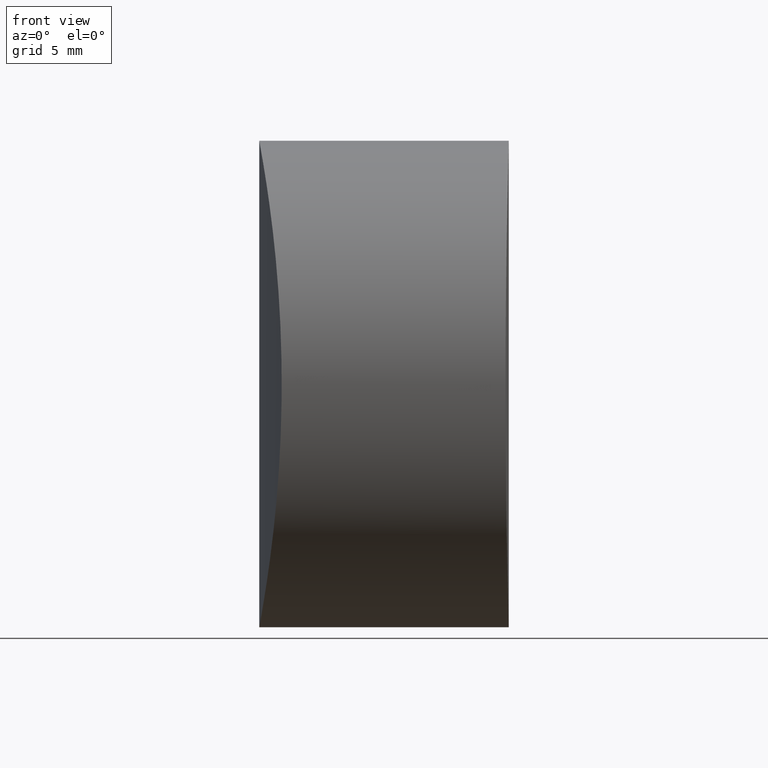
[diagram: clean part render]
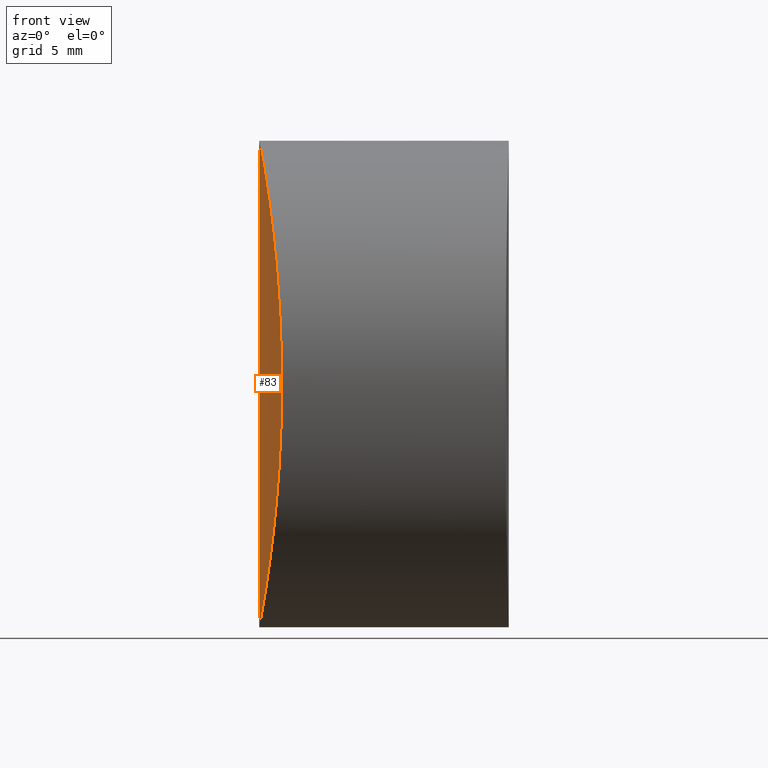
[diagram: same view with one face highlighted and labeled with its STEP entity id]
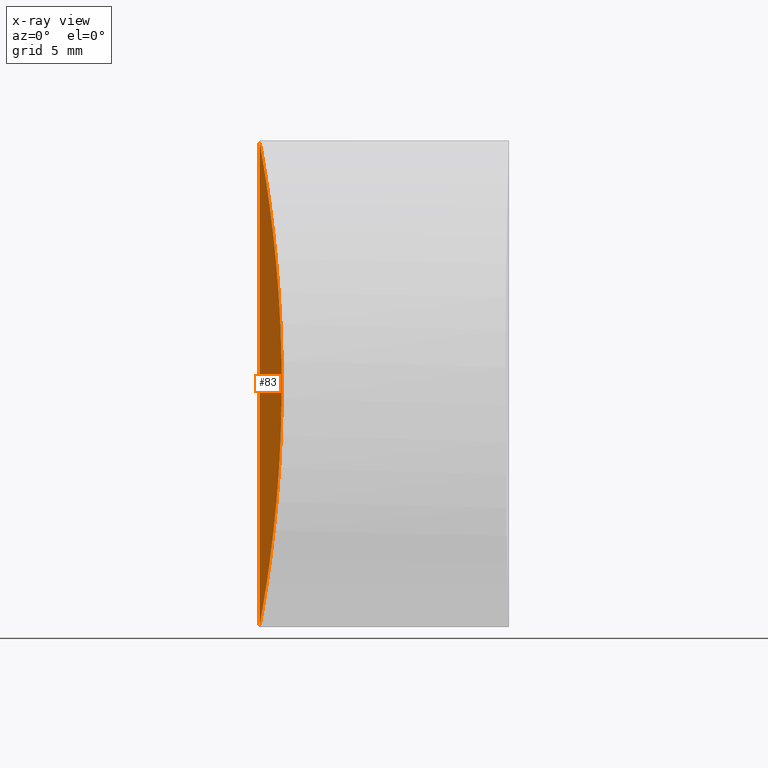
[diagram: x-ray of the same camera — body ghosted, the highlighted face saturated]
A machine part, front view. The second image highlights one B-rep face of the part: STEP entity #83.
The next image is the same camera in x-ray: the body ghosted, the highlighted face saturated — about 0% of this face is hidden behind the body in this view.
In plain terms, the highlighted cylindrical surface (partial cylindrical patch) has radius 63.825 mm, axis along (-0, -0, -1).
Its self-contained STEP definition (entity closure, byte-faithful):
#1 = VERTEX_POINT ( 'NONE', #11 ) ;
#2 = CARTESIAN_POINT ( 'NONE',  ( 0.3981970890931836871, -7.124657941792813531, 2.411463626641665581 ) ) ;
#5 = CARTESIAN_POINT ( 'NONE',  ( 5.872761767629793087E-17, -0.7742894314466612915, -1.807003620809167088E-15 ) ) ;
#10 = CARTESIAN_POINT ( 'NONE',  ( 1.026387645812687266, -11.40046676091581723, 14.35798906311860534 ) ) ;
#11 = CARTESIAN_POINT ( 'NONE',  ( -4.141137470945756404E-15, 4.814824860968089633E-32, 23.39999999999999858 ) ) ;
#12 = CARTESIAN_POINT ( 'NONE',  ( 1.081551584451778902, -11.70001307373700783, 10.92592246693983249 ) ) ;
#14 = CARTESIAN_POINT ( 'NONE',  ( 0.8114595024342564633, -10.15423156406627214, 17.56213665283064174 ) ) ;
#17 = CARTESIAN_POINT ( 'NONE',  ( 1.081546708014796465, -11.69998692292639397, 12.47447269555279092 ) ) ;
#19 = CARTESIAN_POINT ( 'NONE',  ( 1.025737339041762564, -11.39689221130534591, 9.026127710991007191 ) ) ;
#29 = VECTOR ( 'NONE', #334, 1000.000000000000000 ) ;
#43 = CARTESIAN_POINT ( 'NONE',  ( 0.05491749648948490020, -2.674023807851463097, 23.09685656371595996 ) ) ;
#45 = CARTESIAN_POINT ( 'NONE',  ( 0.8958352716320909792, -10.65705598267314080, 6.856235823301516596 ) ) ;
#48 = CARTESIAN_POINT ( 'NONE',  ( 0.2103131712000086140, -5.188113125018478655, 22.19378134776713907 ) ) ;
#50 = CARTESIAN_POINT ( 'NONE',  ( 1.067220561995215755, -11.62391570664929752, 10.16066117411337544 ) ) ;
#58 = FACE_OUTER_BOUND ( 'NONE', #341, .T. ) ;
#72 = CARTESIAN_POINT ( 'NONE',  ( 1.067219123685523519, -11.62387579051964437, 13.23548185016591283 ) ) ;
#83 = ADVANCED_FACE ( 'NONE', ( #58 ), #280, .T. ) ;
#87 = CARTESIAN_POINT ( 'NONE',  ( 0.6084979537039918451, -8.809038990309202788, 3.962432468067241143 ) ) ;
#91 = CARTESIAN_POINT ( 'NONE',  ( 0.6790403438742310671, -9.288650379819989311, 18.82450790322400280 ) ) ;
#95 = CARTESIAN_POINT ( 'NONE',  ( 0.3985569807442610468, -7.150451226027964680, 20.99256389016858648 ) ) ;
#97 = CARTESIAN_POINT ( 'NONE',  ( 0.9687309557182917086, -11.07849100994933167, 7.917977516903819790 ) ) ;
#114 = CARTESIAN_POINT ( 'NONE',  ( 0.5029821284131045234, -8.001646464694838201, 3.155502726020757542 ) ) ;
#115 = CARTESIAN_POINT ( 'NONE',  ( 0.05426621681067881481, -2.657881137944721583, 0.2995075387829124747 ) ) ;
#117 = EDGE_CURVE ( 'NONE', #1, #176, #338, .T. ) ;
#118 = ORIENTED_EDGE ( 'NONE', *, *, #351, .T. ) ;
#119 = CARTESIAN_POINT ( 'NONE',  ( 0.1831044886453035148, -4.843956489648163277, 22.35696897804074723 ) ) ;
#128 = CARTESIAN_POINT ( 'NONE',  ( 0.1111066559077999311, -3.782190799505586121, 22.77843383283525114 ) ) ;
#141 = CARTESIAN_POINT ( 'NONE',  ( 0.2075012138276752516, -5.191132963068326944, 1.186710588237356534 ) ) ;
#143 = CARTESIAN_POINT ( 'NONE',  ( 0.01407474214998844647, -1.535324166572834548, 0.07610126892112316355 ) ) ;
#149 = CARTESIAN_POINT ( 'NONE',  ( 0.2688372582671491040, -5.861661511095389798, 21.83296052997726733 ) ) ;
#151 = CARTESIAN_POINT ( 'NONE',  ( -4.141137470945756404E-15, 4.814824860968089633E-32, 23.39999999999999858 ) ) ;
#154 = CARTESIAN_POINT ( 'NONE',  ( 0.01408116879446164385, -1.539501943900539072, 23.32389371941326317 ) ) ;
#157 = CARTESIAN_POINT ( 'NONE',  ( 0.8711310958146454286, -10.51331334070105150, 16.89107597017361329 ) ) ;
#172 = CARTESIAN_POINT ( 'NONE',  ( 0.07084606275923394092, -3.028877816930000577, 0.3923219977631742794 ) ) ;
#176 = VERTEX_POINT ( 'NONE', #314 ) ;
#185 = CARTESIAN_POINT ( 'NONE',  ( 0.7133468049485044427, -9.518186587334058757, 18.51468196521151199 ) ) ;
#199 = CARTESIAN_POINT ( 'NONE',  ( 0.6786392442632364075, -9.292741892843077167, 4.549782761914097584 ) ) ;
#208 = CARTESIAN_POINT ( 'NONE',  ( 1.008551935788915666, -11.30209599237799623, 8.650527373586283986 ) ) ;
#211 = CARTESIAN_POINT ( 'NONE',  ( 0.8683281989168448733, -10.49387996813886481, 6.512087202741692948 ) ) ;
#220 = DIRECTION ( 'NONE',  ( -1.000000000000000000, 0.000000000000000000, 0.000000000000000000 ) ) ;
#223 = CARTESIAN_POINT ( 'NONE',  ( 63.82500000000000995, 0.000000000000000000, 23.39999999999999858 ) ) ;
#228 = ORIENTED_EDGE ( 'NONE', *, *, #117, .T. ) ;
#233 = CARTESIAN_POINT ( 'NONE',  ( 0.8092507048641326417, -10.13308353008049245, 5.838551872610818094 ) ) ;
#235 = CARTESIAN_POINT ( 'NONE',  ( 0.9697962851570927079, -11.08453120251869883, 15.46441701525430901 ) ) ;
#238 = CARTESIAN_POINT ( 'NONE',  ( 1.009552524960164011, -11.30765336064577475, 14.72896730253449782 ) ) ;
#240 = CARTESIAN_POINT ( 'NONE',  ( 0.6092559624863964629, -8.801190405573361630, 19.41859353680932543 ) ) ;
#249 = AXIS2_PLACEMENT_3D ( 'NONE', #223, #304, #220 ) ;
#253 = CARTESIAN_POINT ( 'NONE',  ( 0.2665835727268308641, -5.862239177635413689, 1.545824589513390634 ) ) ;
#254 = CARTESIAN_POINT ( 'NONE',  ( 0.1100426656957044919, -3.764366742370646612, 0.6154510393478311858 ) ) ;
#261 = CARTESIAN_POINT ( 'NONE',  ( 0.9460360846187387818, -10.94936128530218689, 7.559181112240893619 ) ) ;
#273 = CARTESIAN_POINT ( 'NONE',  ( 0.000000000000000000, 0.000000000000000000, 23.39999999999999858 ) ) ;
#280 = CYLINDRICAL_SURFACE ( 'NONE', #249, 63.82500000000000995 ) ;
#283 = CARTESIAN_POINT ( 'NONE',  ( 0.1327431232767601055, -4.129514016409650878, 0.7462840591783612698 ) ) ;
#296 = CARTESIAN_POINT ( 'NONE',  ( -4.129944421268135128E-15, -0.7742577855512007279, 23.39999999999999858 ) ) ;
#300 = CARTESIAN_POINT ( 'NONE',  ( 0.5739704204251403485, -8.544674336828389727, 19.70145680340118233 ) ) ;
#304 = DIRECTION ( 'NONE',  ( -0.000000000000000000, -0.000000000000000000, -1.000000000000000000 ) ) ;
#314 = CARTESIAN_POINT ( 'NONE',  ( -3.371327084254926024E-31, -2.998293745295732884E-46, -1.734723475976806503E-15 ) ) ;
#315 = CARTESIAN_POINT ( 'NONE',  ( -3.371327084254926024E-31, -2.998293745295732884E-46, -1.734723475976806503E-15 ) ) ;
#327 = CARTESIAN_POINT ( 'NONE',  ( 0.4684569156949967006, -7.737789283861301826, 20.50884209162342486 ) ) ;
#330 = CARTESIAN_POINT ( 'NONE',  ( 0.07184369518110893249, -3.049628416635762562, 23.00205423597060772 ) ) ;
#334 = DIRECTION ( 'NONE',  ( -0.000000000000000000, -0.000000000000000000, -1.000000000000000000 ) ) ;
#338 = LINE ( 'NONE', #273, #29 ) ;
#341 = EDGE_LOOP ( 'NONE', ( #118, #228 ) ) ;
#342 = CARTESIAN_POINT ( 'NONE',  ( 0.4677542230412924384, -7.718774892728558434, 2.898967509312591062 ) ) ;
#346 = CARTESIAN_POINT ( 'NONE',  ( 0.1335018423669082077, -4.140995192947472425, 22.64929500399514950 ) ) ;
#348 = CARTESIAN_POINT ( 'NONE',  ( 0.9467913006814849819, -10.95370628446034544, 15.82953694931322630 ) ) ;
#351 = EDGE_CURVE ( 'NONE', #176, #1, #359, .T. ) ;
#352 = CARTESIAN_POINT ( 'NONE',  ( 0.3003235004343337011, -6.192665103023485607, 21.63421224954261390 ) ) ;
#354 = CARTESIAN_POINT ( 'NONE',  ( 0.7775084725539785913, -9.934347637957216648, 5.507552857075052266 ) ) ;
#359 = B_SPLINE_CURVE_WITH_KNOTS ( 'NONE', 3,
 ( #315, #5, #143, #115, #172, #254, #283, #141, #253, #370, #2, #342, #114, #87, #199, #354, #233, #211, #45, #261, #97, #208, #19, #50, #12, #17, #72, #10, #238, #235, #348, #157, #14, #185, #91, #240, #300, #327, #95, #352, #149, #48, #119, #346, #128, #330, #43, #154, #296, #151 ),
 .UNSPECIFIED., .F., .F.,
 ( 4, 2, 2, 2, 2, 2, 2, 2, 2, 2, 2, 2, 2, 2, 2, 2, 2, 2, 2, 2, 2, 2, 2, 2, 4 ),
 ( -0.01831561039910281283, -0.01602613475618877223, -0.01488139693473175366, -0.01373665911327473163, -0.01144718347036069450, -0.01030244564890367767, -0.009157707827446659107, -0.006868232184532625448, -0.005723494363075605149, -0.004578756541618586584, -0.003434018720161566285, -0.002289280898704545986, 1.947442094946127966E-07, 0.002289670387123535211, 0.003434408208580555510, 0.004579146030037582749, 0.006868621672951626816, 0.008013359494408647116, 0.009158097315865674354, 0.01144757295877972189, 0.01259231078023674566, 0.01373704860169377637, 0.01488178642315080361, 0.01602652424460783084, 0.01831599988752187838 ),
 .UNSPECIFIED. ) ;
#370 = CARTESIAN_POINT ( 'NONE',  ( 0.3640620327021439340, -6.814826321366607154, 2.181915958540157519 ) ) ;